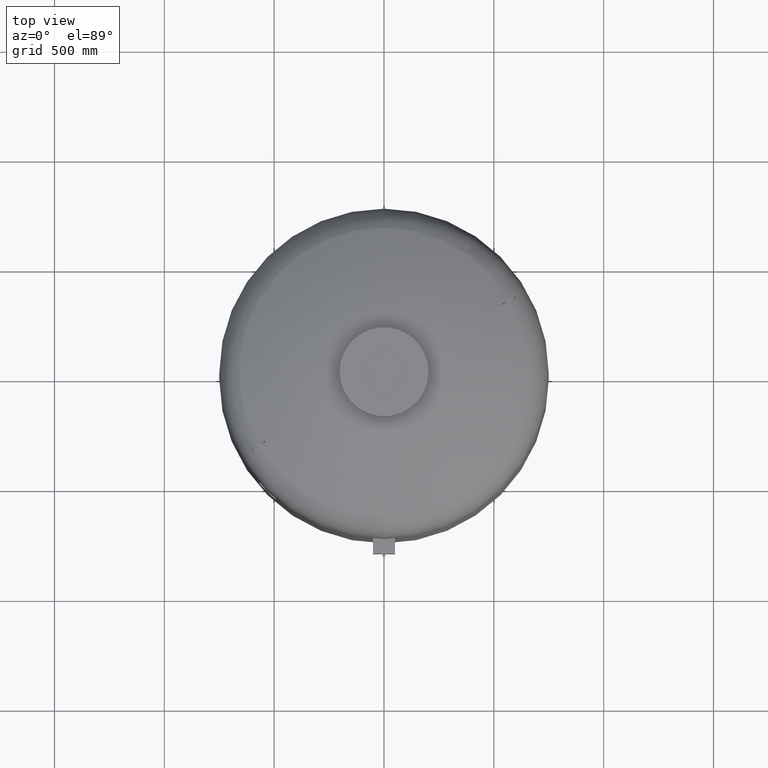
[diagram: clean part render]
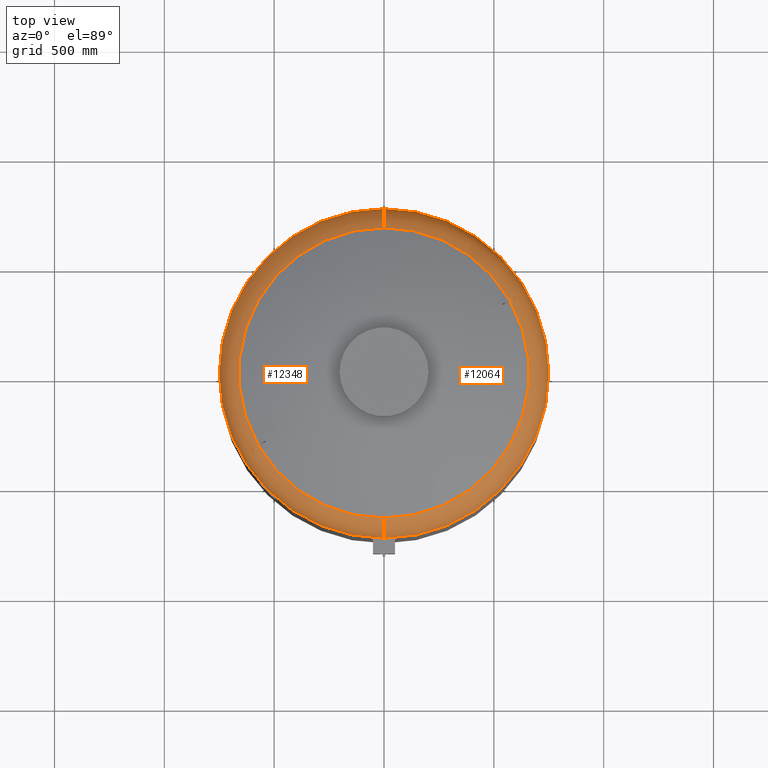
[diagram: same view with one multi-face feature highlighted, each face labeled with its STEP entity id]
A machine part, top view. The highlighted faces form ONE feature: a constant-radius fillet chain: 2 tangent blend faces with common blend radius 159 mm. The faces share edges in the B-rep.
Their STEP definitions:
[1] entity #12064 (Torus):
#11864=CARTESIAN_POINT('',(750.0,-5.423428E-014,2130.762332584101800));
#11865=VERTEX_POINT('',#11864);
#11889=CARTESIAN_POINT('',(1.267436E-013,750.0,2130.762332584101800));
#11890=VERTEX_POINT('',#11889);
#11898=CARTESIAN_POINT('',(1.459986E-014,-5.423428E-014,2130.762332584101800));
#11899=DIRECTION('',(0.0,0.0,-1.0));
#11900=DIRECTION('',(1.0,0.0,0.0));
#11901=AXIS2_PLACEMENT_3D('',#11898,#11899,#11900);
#11902=CIRCLE('',#11901,750.0);
#11903=EDGE_CURVE('',#11890,#11865,#11902,.T.);
#11971=CARTESIAN_POINT('',(3.489809E-014,-5.423428E-014,2130.762332584101800));
#11972=DIRECTION('',(4.945121E-017,-1.836970E-016,-1.0));
#11973=DIRECTION('',(0.0,-1.0,0.0));
#11974=AXIS2_PLACEMENT_3D('',#11971,#11972,#11973);
#11975=TOROIDAL_SURFACE('',#11974,591.0,159.0);
#11976=CARTESIAN_POINT('',(3.489809E-014,-750.0,2130.762332584101800));
#11977=VERTEX_POINT('',#11976);
#11978=CARTESIAN_POINT('',(2.782883E-014,-660.606666666666800,2273.716562866229200));
#11979=VERTEX_POINT('',#11978);
#11980=CARTESIAN_POINT('',(3.489809E-014,-591.0,2130.762332584101800));
#11981=DIRECTION('',(-1.0,0.0,0.0));
#11982=DIRECTION('',(0.0,-1.0,0.0));
#11983=AXIS2_PLACEMENT_3D('',#11980,#11981,#11982);
#11984=CIRCLE('',#11983,159.0);
#11985=EDGE_CURVE('',#11977,#11979,#11984,.T.);
#11986=ORIENTED_EDGE('',*,*,#11985,.F.);
#11987=CARTESIAN_POINT('',(1.459986E-014,-5.423428E-014,2130.762332584101800));
#11988=DIRECTION('',(0.0,0.0,-1.0));
#11989=DIRECTION('',(1.0,0.0,0.0));
#11990=AXIS2_PLACEMENT_3D('',#11987,#11988,#11989);
#11991=CIRCLE('',#11990,750.0);
#11992=EDGE_CURVE('',#11865,#11977,#11991,.T.);
#11993=ORIENTED_EDGE('',*,*,#11992,.F.);
#11994=ORIENTED_EDGE('',*,*,#11903,.F.);
#11995=CARTESIAN_POINT('',(1.087271E-013,660.606666666666800,2273.716562866229200));
#11996=VERTEX_POINT('',#11995);
#11997=CARTESIAN_POINT('',(1.072723E-013,591.0,2130.762332584101800));
#11998=DIRECTION('',(1.0,0.0,0.0));
#11999=DIRECTION('',(0.0,1.0,0.0));
#12000=AXIS2_PLACEMENT_3D('',#11997,#11998,#11999);
#12001=CIRCLE('',#12000,159.0);
#12002=EDGE_CURVE('',#11890,#11996,#12001,.T.);
#12003=ORIENTED_EDGE('',*,*,#12002,.T.);
#12004=CARTESIAN_POINT('',(570.596255916202270,332.898003566943030,2273.716562866229200));
#12005=VERTEX_POINT('',#12004);
#12006=CARTESIAN_POINT('',(7.530601E-015,-2.797401E-014,2273.716562866229200));
#12007=DIRECTION('',(0.0,0.0,-1.0));
#12008=DIRECTION('',(1.0,0.0,0.0));
#12009=AXIS2_PLACEMENT_3D('',#12006,#12007,#12008);
#12010=CIRCLE('',#12009,660.606666666666800);
#12011=EDGE_CURVE('',#11996,#12005,#12010,.T.);
#12012=ORIENTED_EDGE('',*,*,#12011,.T.);
#12013=CARTESIAN_POINT('',(588.588482349337030,343.285820341434260,2261.575471650438900));
#12014=VERTEX_POINT('',#12013);
#12015=CARTESIAN_POINT('',(570.596255916202270,332.898003566943030,2273.716562866229200));
#12016=CARTESIAN_POINT('',(572.054041405254220,333.739656411467930,2272.896943261032400));
#12017=CARTESIAN_POINT('',(573.514867502697370,334.583064752065810,2272.038760350182700));
#12018=CARTESIAN_POINT('',(576.976511612975400,336.581645910973690,2269.912932457119000));
#12019=CARTESIAN_POINT('',(578.974781685762880,337.735347675411160,2268.612126014599200));
#12020=CARTESIAN_POINT('',(582.931774475123920,340.019918527530190,2265.881544856047600));
#12021=CARTESIAN_POINT('',(584.890496100696050,341.150786985321820,2264.451768031998700));
#12022=CARTESIAN_POINT('',(587.410277309621960,342.605583344594150,2262.507652363015000));
#12023=CARTESIAN_POINT('',(588.001091399301120,342.946690018311470,2262.044094471851200));
#12024=CARTESIAN_POINT('',(588.588482349337030,343.285820341434260,2261.575471650438900));
#12025=B_SPLINE_CURVE_WITH_KNOTS('',3,(#12015,#12016,#12017,#12018,#12019,#12020,#12021,#12022,#12023,#12024),.UNSPECIFIED.,.F.,.U.,(4,2,2,2,4),(774.656358350488740,780.010685689572260,787.369273058092740,794.727860426613230,796.996990205935960),.UNSPECIFIED.);
#12026=EDGE_CURVE('',#12005,#12014,#12025,.T.);
#12027=ORIENTED_EDGE('',*,*,#12026,.T.);
#12028=CARTESIAN_POINT('',(591.588482349336690,338.089667918727570,2261.575471650438900));
#12029=VERTEX_POINT('',#12028);
#12030=CARTESIAN_POINT('',(588.588482349337030,343.285820341434260,2261.575471650438900));
#12031=CARTESIAN_POINT('',(589.090111222559810,342.418391231101340,2261.578030124753200));
#12032=CARTESIAN_POINT('',(589.590425441357980,341.552525995023070,2261.579301453786200));
#12033=CARTESIAN_POINT('',(590.089401200233620,340.688274628905390,2261.579301453786200));
#12034=CARTESIAN_POINT('',(590.588376959112570,339.824023262781680,2261.579301453786200));
#12035=CARTESIAN_POINT('',(591.088081140414260,338.957805821382750,2261.578030124753200));
#12036=CARTESIAN_POINT('',(591.588482349336690,338.089667918727570,2261.575471650438900));
#12037=B_SPLINE_CURVE_WITH_KNOTS('',3,(#12030,#12031,#12032,#12033,#12034,#12035,#12036),.UNSPECIFIED.,.F.,.U.,(4,3,4),(-2.993854553253430,0.0,2.993854553273963),.UNSPECIFIED.);
#12038=EDGE_CURVE('',#12014,#12029,#12037,.T.);
#12039=ORIENTED_EDGE('',*,*,#12038,.T.);
#12040=CARTESIAN_POINT('',(573.596255916202270,327.701851144236400,2273.716562866229200));
#12041=VERTEX_POINT('',#12040);
#12042=CARTESIAN_POINT('',(591.588482349336690,338.089667918727570,2261.575471650438900));
#12043=CARTESIAN_POINT('',(591.001034993602270,337.750505029759610,2262.044139472540300));
#12044=CARTESIAN_POINT('',(590.410163811151510,337.409365393515030,2262.507741414689900));
#12045=CARTESIAN_POINT('',(587.890327860486420,335.954537429084780,2264.451893026950100));
#12046=CARTESIAN_POINT('',(585.931609407500670,334.823670802986780,2265.881663004374300));
#12047=CARTESIAN_POINT('',(581.974623379374860,332.539103854468750,2268.612231014925300));
#12048=CARTESIAN_POINT('',(579.976356895234860,331.385404161938030,2269.913031156073000));
#12049=CARTESIAN_POINT('',(576.514766784393940,329.386854179619720,2272.038819520509200));
#12050=CARTESIAN_POINT('',(575.053991207979040,328.543475007350930,2272.896971483751700));
#12051=CARTESIAN_POINT('',(573.596255916202270,327.701851144236400,2273.716562866229200));
#12052=B_SPLINE_CURVE_WITH_KNOTS('',3,(#12042,#12043,#12044,#12045,#12046,#12047,#12048,#12049,#12050,#12051),.UNSPECIFIED.,.F.,.U.,(4,2,2,2,4),(144.901644365231360,147.170992146182750,154.529560626149700,161.888129106116650,167.242268222433860),.UNSPECIFIED.);
#12053=EDGE_CURVE('',#12029,#12041,#12052,.T.);
#12054=ORIENTED_EDGE('',*,*,#12053,.T.);
#12055=CARTESIAN_POINT('',(7.530601E-015,-2.797401E-014,2273.716562866229200));
#12056=DIRECTION('',(0.0,0.0,-1.0));
#12057=DIRECTION('',(1.0,0.0,0.0));
#12058=AXIS2_PLACEMENT_3D('',#12055,#12056,#12057);
#12059=CIRCLE('',#12058,660.606666666666800);
#12060=EDGE_CURVE('',#12041,#11979,#12059,.T.);
#12061=ORIENTED_EDGE('',*,*,#12060,.T.);
#12062=EDGE_LOOP('',(#11986,#11993,#11994,#12003,#12012,#12027,#12039,#12054,#12061));
#12063=FACE_OUTER_BOUND('',#12062,.T.);
#12064=ADVANCED_FACE('',(#12063),#11975,.T.);
[2] entity #12348 (Torus):
#11881=CARTESIAN_POINT('',(-750.0,3.761120E-014,2130.762332584101800));
#11882=VERTEX_POINT('',#11881);
#11889=CARTESIAN_POINT('',(1.267436E-013,750.0,2130.762332584101800));
#11890=VERTEX_POINT('',#11889);
#11891=CARTESIAN_POINT('',(1.459986E-014,-5.423428E-014,2130.762332584101800));
#11892=DIRECTION('',(0.0,0.0,-1.0));
#11893=DIRECTION('',(1.0,0.0,0.0));
#11894=AXIS2_PLACEMENT_3D('',#11891,#11892,#11893);
#11895=CIRCLE('',#11894,750.0);
#11896=EDGE_CURVE('',#11882,#11890,#11895,.T.);
#11976=CARTESIAN_POINT('',(3.489809E-014,-750.0,2130.762332584101800));
#11977=VERTEX_POINT('',#11976);
#11978=CARTESIAN_POINT('',(2.782883E-014,-660.606666666666800,2273.716562866229200));
#11979=VERTEX_POINT('',#11978);
#11980=CARTESIAN_POINT('',(3.489809E-014,-591.0,2130.762332584101800));
#11981=DIRECTION('',(-1.0,0.0,0.0));
#11982=DIRECTION('',(0.0,-1.0,0.0));
#11983=AXIS2_PLACEMENT_3D('',#11980,#11981,#11982);
#11984=CIRCLE('',#11983,159.0);
#11985=EDGE_CURVE('',#11977,#11979,#11984,.T.);
#11995=CARTESIAN_POINT('',(1.087271E-013,660.606666666666800,2273.716562866229200));
#11996=VERTEX_POINT('',#11995);
#11997=CARTESIAN_POINT('',(1.072723E-013,591.0,2130.762332584101800));
#11998=DIRECTION('',(1.0,0.0,0.0));
#11999=DIRECTION('',(0.0,1.0,0.0));
#12000=AXIS2_PLACEMENT_3D('',#11997,#11998,#11999);
#12001=CIRCLE('',#12000,159.0);
#12002=EDGE_CURVE('',#11890,#11996,#12001,.T.);
#12112=CARTESIAN_POINT('',(-570.596255916196580,-332.898003566952920,2273.716562866229700));
#12113=VERTEX_POINT('',#12112);
#12114=CARTESIAN_POINT('',(-588.588482349331340,-343.285820341443810,2261.575471650438900));
#12115=VERTEX_POINT('',#12114);
#12116=CARTESIAN_POINT('',(-570.596255916196580,-332.898003566952920,2273.716562866229700));
#12117=CARTESIAN_POINT('',(-572.053991207973350,-333.739627430067460,2272.896971483751700));
#12118=CARTESIAN_POINT('',(-573.514766784388030,-334.583006602336130,2272.038819520509200));
#12119=CARTESIAN_POINT('',(-576.976356895228950,-336.581556584654270,2269.913031156073000));
#12120=CARTESIAN_POINT('',(-578.974623379368950,-337.735256277185040,2268.612231014925300));
#12121=CARTESIAN_POINT('',(-582.931609407494880,-340.019823225703130,2265.881663004374300));
#12122=CARTESIAN_POINT('',(-584.890327860480620,-341.150689851801190,2264.451893026950500));
#12123=CARTESIAN_POINT('',(-587.410163811145820,-342.605517816231330,2262.507741414689900));
#12124=CARTESIAN_POINT('',(-588.001034993596930,-342.946657452475790,2262.044139472540300));
#12125=CARTESIAN_POINT('',(-588.588482349331340,-343.285820341443810,2261.575471650438900));
#12126=B_SPLINE_CURVE_WITH_KNOTS('',3,(#12116,#12117,#12118,#12119,#12120,#12121,#12122,#12123,#12124,#12125),.UNSPECIFIED.,.F.,.U.,(4,2,2,2,4),(774.656357685334110,780.010496801651020,787.369065281617960,794.727633761584910,796.996981542536560),.UNSPECIFIED.);
#12127=EDGE_CURVE('',#12113,#12115,#12126,.T.);
#12229=CARTESIAN_POINT('',(-591.588482349331340,-338.089667918737230,2261.575471650438900));
#12230=VERTEX_POINT('',#12229);
#12231=CARTESIAN_POINT('',(-588.588482349331340,-343.285820341443810,2261.575471650438900));
#12232=CARTESIAN_POINT('',(-589.090111222557650,-342.418391231104920,2261.578030124753200));
#12233=CARTESIAN_POINT('',(-589.590425441359340,-341.552525995020690,2261.579301453786200));
#12234=CARTESIAN_POINT('',(-590.089401200238290,-340.688274628897030,2261.579301453786200));
#12235=CARTESIAN_POINT('',(-590.588376959113930,-339.824023262779290,2261.579301453786200));
#12236=CARTESIAN_POINT('',(-591.088081140412330,-338.957805821386390,2261.578030124753200));
#12237=CARTESIAN_POINT('',(-591.588482349331340,-338.089667918737230,2261.575471650438900));
#12238=B_SPLINE_CURVE_WITH_KNOTS('',3,(#12231,#12232,#12233,#12234,#12235,#12236,#12237),.UNSPECIFIED.,.F.,.U.,(4,3,4),(-2.993854553274037,0.0,2.993854553253479),.UNSPECIFIED.);
#12239=EDGE_CURVE('',#12115,#12230,#12238,.T.);
#12264=CARTESIAN_POINT('',(-573.596255916196580,-327.701851144246290,2273.716562866229700));
#12265=VERTEX_POINT('',#12264);
#12266=CARTESIAN_POINT('',(-591.588482349331340,-338.089667918737230,2261.575471650438900));
#12267=CARTESIAN_POINT('',(-591.001091399295430,-337.750537595614450,2262.044094471851200));
#12268=CARTESIAN_POINT('',(-590.410277309616280,-337.409430921897070,2262.507652363015000));
#12269=CARTESIAN_POINT('',(-587.890496100690370,-335.954634562624850,2264.451768031998700));
#12270=CARTESIAN_POINT('',(-585.931774475118230,-334.823766104833230,2265.881544856047600));
#12271=CARTESIAN_POINT('',(-581.974781685757190,-332.539195252714250,2268.612126014599200));
#12272=CARTESIAN_POINT('',(-579.976511612969600,-331.385493488276780,2269.912932457119000));
#12273=CARTESIAN_POINT('',(-576.514867502691460,-329.386912329369070,2272.038760350182700));
#12274=CARTESIAN_POINT('',(-575.054041405248540,-328.543503988771140,2272.896943261032400));
#12275=CARTESIAN_POINT('',(-573.596255916196580,-327.701851144246290,2273.716562866229700));
#12276=B_SPLINE_CURVE_WITH_KNOTS('',3,(#12266,#12267,#12268,#12269,#12270,#12271,#12272,#12273,#12274,#12275),.UNSPECIFIED.,.F.,.U.,(4,2,2,2,4),(144.901635701804910,147.170765481127490,154.529352849647950,161.887940218168410,167.242267557251490),.UNSPECIFIED.);
#12277=EDGE_CURVE('',#12230,#12265,#12276,.T.);
#12314=CARTESIAN_POINT('',(3.489809E-014,-5.423428E-014,2130.762332584101800));
#12315=DIRECTION('',(4.945121E-017,-1.836970E-016,-1.0));
#12316=DIRECTION('',(0.0,-1.0,0.0));
#12317=AXIS2_PLACEMENT_3D('',#12314,#12315,#12316);
#12318=TOROIDAL_SURFACE('',#12317,591.0,159.0);
#12319=ORIENTED_EDGE('',*,*,#11985,.T.);
#12320=CARTESIAN_POINT('',(7.530601E-015,-2.797401E-014,2273.716562866229200));
#12321=DIRECTION('',(0.0,0.0,-1.0));
#12322=DIRECTION('',(1.0,0.0,0.0));
#12323=AXIS2_PLACEMENT_3D('',#12320,#12321,#12322);
#12324=CIRCLE('',#12323,660.606666666666800);
#12325=EDGE_CURVE('',#11979,#12113,#12324,.T.);
#12326=ORIENTED_EDGE('',*,*,#12325,.T.);
#12327=ORIENTED_EDGE('',*,*,#12127,.T.);
#12328=ORIENTED_EDGE('',*,*,#12239,.T.);
#12329=ORIENTED_EDGE('',*,*,#12277,.T.);
#12330=CARTESIAN_POINT('',(7.530601E-015,-2.797401E-014,2273.716562866229200));
#12331=DIRECTION('',(0.0,0.0,-1.0));
#12332=DIRECTION('',(1.0,0.0,0.0));
#12333=AXIS2_PLACEMENT_3D('',#12330,#12331,#12332);
#12334=CIRCLE('',#12333,660.606666666666800);
#12335=EDGE_CURVE('',#12265,#11996,#12334,.T.);
#12336=ORIENTED_EDGE('',*,*,#12335,.T.);
#12337=ORIENTED_EDGE('',*,*,#12002,.F.);
#12338=ORIENTED_EDGE('',*,*,#11896,.F.);
#12339=CARTESIAN_POINT('',(1.459986E-014,-5.423428E-014,2130.762332584101800));
#12340=DIRECTION('',(0.0,0.0,-1.0));
#12341=DIRECTION('',(1.0,0.0,0.0));
#12342=AXIS2_PLACEMENT_3D('',#12339,#12340,#12341);
#12343=CIRCLE('',#12342,750.0);
#12344=EDGE_CURVE('',#11977,#11882,#12343,.T.);
#12345=ORIENTED_EDGE('',*,*,#12344,.F.);
#12346=EDGE_LOOP('',(#12319,#12326,#12327,#12328,#12329,#12336,#12337,#12338,#12345));
#12347=FACE_OUTER_BOUND('',#12346,.T.);
#12348=ADVANCED_FACE('',(#12347),#12318,.T.);